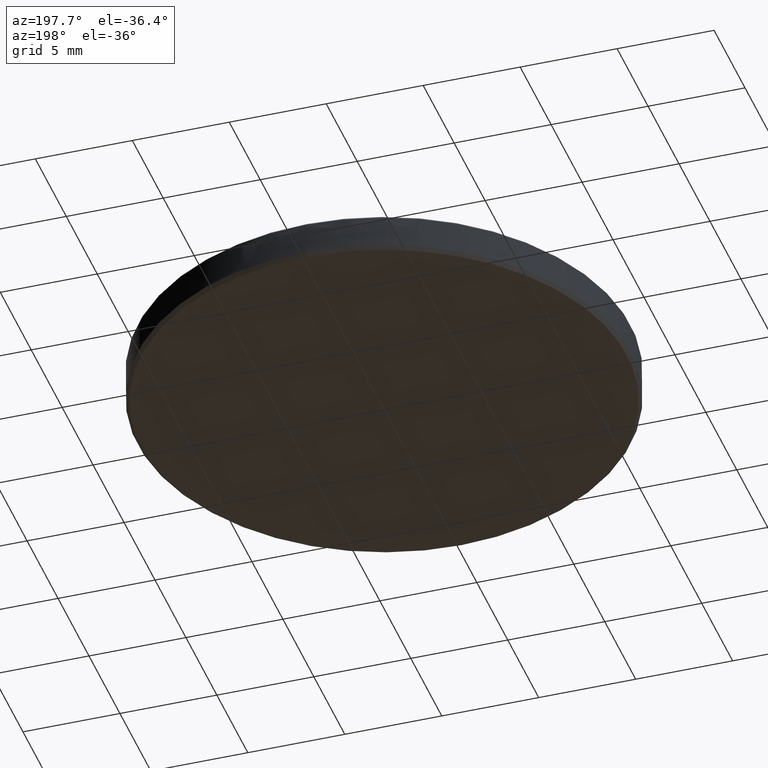
[diagram: clean part render]
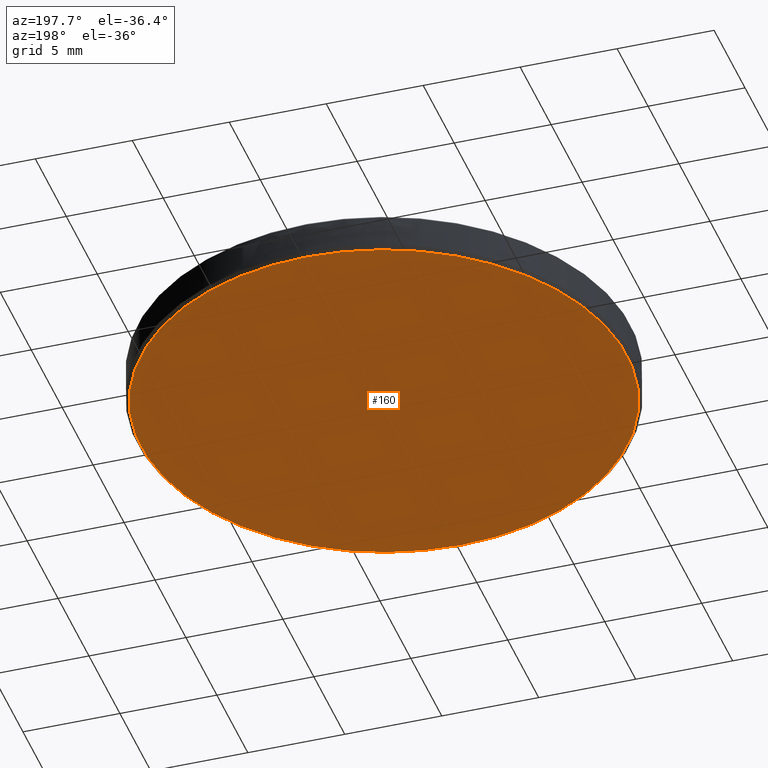
[diagram: same view with one face highlighted and labeled with its STEP entity id]
A machine part, auxiliary view. The second image highlights one B-rep face of the part: STEP entity #160.
In plain terms, the highlighted planar face has unit normal (0, -0, 1).
Its self-contained STEP definition (entity closure, byte-faithful):
#54 = PLANE ( 'NONE',  #734 ) ;
#160 = ADVANCED_FACE ( 'NONE', ( #1020 ), #54, .F. ) ;
#495 = ORIENTED_EDGE ( 'NONE', *, *, #1250, .F. ) ;
#537 = EDGE_CURVE ( 'NONE', #2414, #963, #1556, .T. ) ;
#556 = CARTESIAN_POINT ( 'NONE',  ( 0.0000000000000000000, -0.4930402875867466173, -0.04094488188976407039 ) ) ;
#734 = AXIS2_PLACEMENT_3D ( 'NONE', #737, #949, #2219 ) ;
#737 = CARTESIAN_POINT ( 'NONE',  ( 0.0000000000000000000, 1.511522722569664734E-17, -0.04094488188976387610 ) ) ;
#865 = CARTESIAN_POINT ( 'NONE',  ( 6.080618048087381191E-17, 0.4930402875867466173, -0.04094488188976387610 ) ) ;
#949 = DIRECTION ( 'NONE',  ( 0.0000000000000000000, -1.836970198721029688E-16, 1.000000000000000000 ) ) ;
#963 = VERTEX_POINT ( 'NONE', #865 ) ;
#1020 = FACE_OUTER_BOUND ( 'NONE', #1077, .T. ) ;
#1077 = EDGE_LOOP ( 'NONE', ( #1126, #495 ) ) ;
#1097 = AXIS2_PLACEMENT_3D ( 'NONE', #2810, #2669, #2639 ) ;
#1126 = ORIENTED_EDGE ( 'NONE', *, *, #537, .F. ) ;
#1250 = EDGE_CURVE ( 'NONE', #963, #2414, #2735, .T. ) ;
#1279 = CARTESIAN_POINT ( 'NONE',  ( 0.0000000000000000000, 1.511522722569666275E-17, -0.04094488188976397325 ) ) ;
#1556 = CIRCLE ( 'NONE', #2205, 0.4930402875867466173 ) ;
#1703 = DIRECTION ( 'NONE',  ( -0.0000000000000000000, -1.836970198721029688E-16, 1.000000000000000000 ) ) ;
#2125 = DIRECTION ( 'NONE',  ( 0.0000000000000000000, -1.000000000000000000, -1.904657228760170810E-16 ) ) ;
#2205 = AXIS2_PLACEMENT_3D ( 'NONE', #1279, #1703, #2125 ) ;
#2219 = DIRECTION ( 'NONE',  ( 0.0000000000000000000, -1.000000000000000000, -1.836970198721029688E-16 ) ) ;
#2414 = VERTEX_POINT ( 'NONE', #556 ) ;
#2639 = DIRECTION ( 'NONE',  ( 0.0000000000000000000, -1.000000000000000000, -1.904657228760170810E-16 ) ) ;
#2669 = DIRECTION ( 'NONE',  ( -0.0000000000000000000, -1.836970198721029688E-16, 1.000000000000000000 ) ) ;
#2735 = CIRCLE ( 'NONE', #1097, 0.4930402875867466173 ) ;
#2810 = CARTESIAN_POINT ( 'NONE',  ( 0.0000000000000000000, 1.511522722569666275E-17, -0.04094488188976397325 ) ) ;